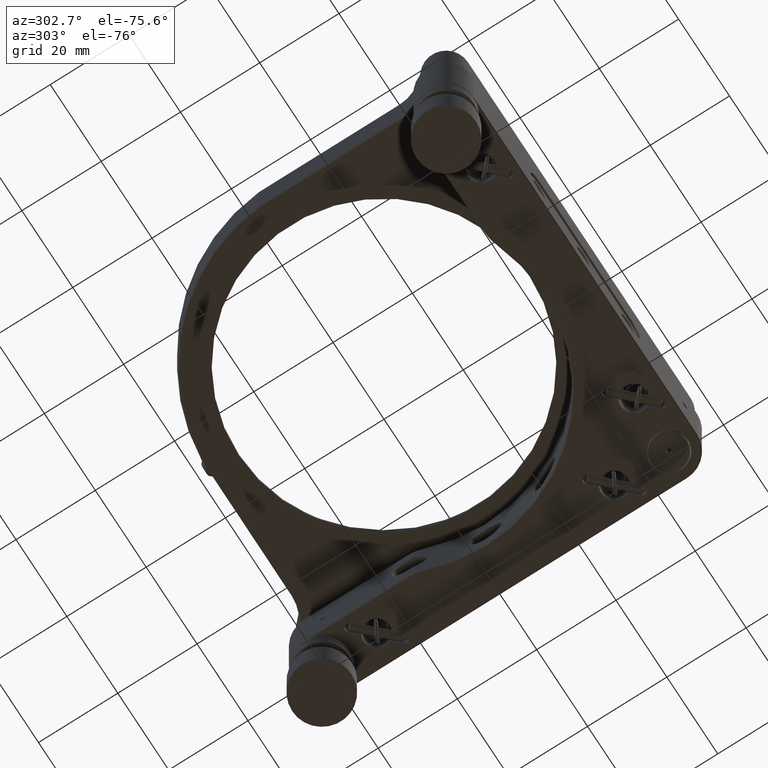
[diagram: clean part render]
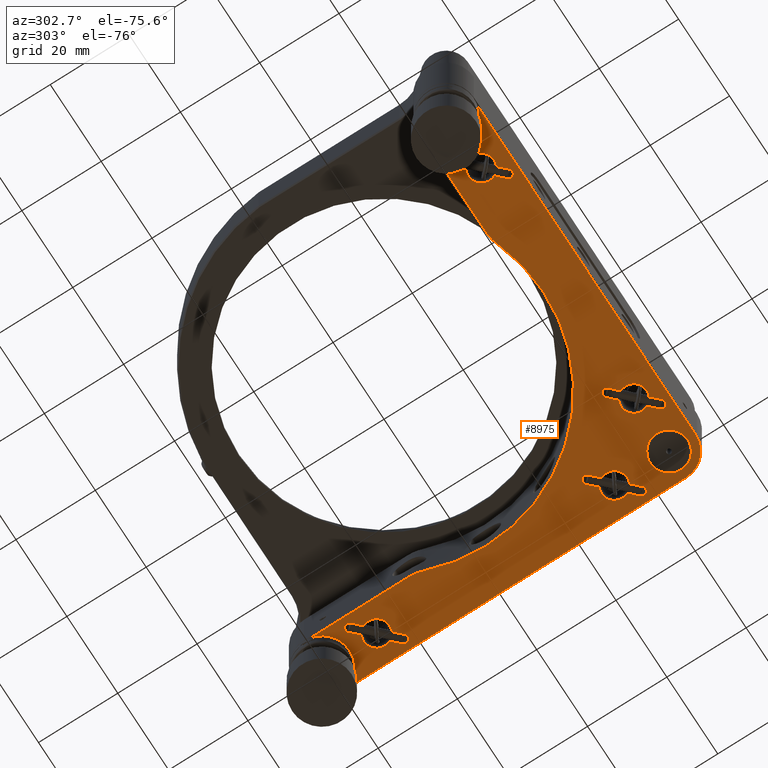
[diagram: same view with one face highlighted and labeled with its STEP entity id]
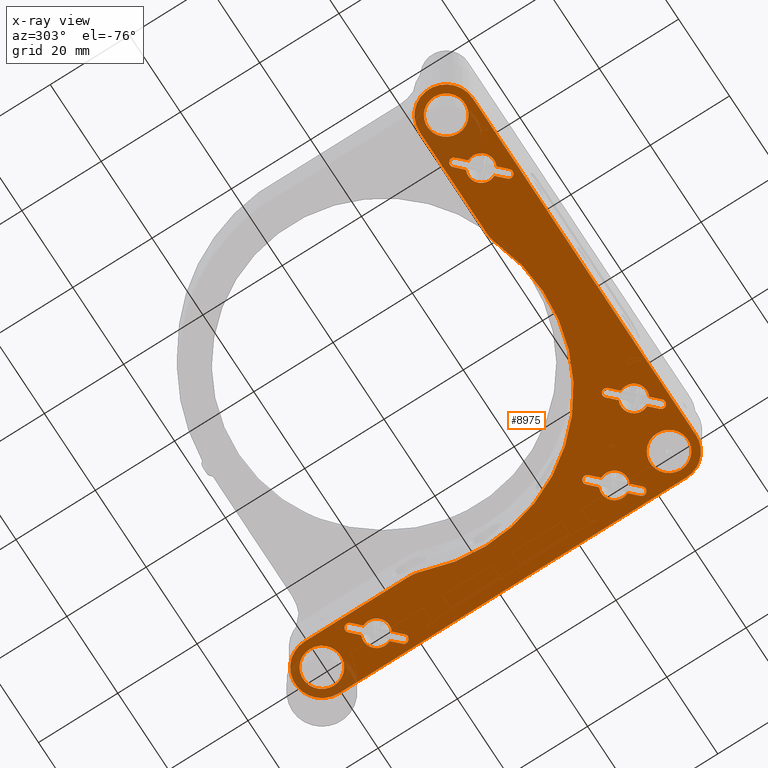
[diagram: x-ray of the same camera — body ghosted, the highlighted face saturated]
A machine part, auxiliary view. The second image highlights one B-rep face of the part: STEP entity #8975.
The next image is the same camera in x-ray: the body ghosted, the highlighted face saturated — about 6% of this face is hidden behind the body in this view.
In plain terms, the highlighted planar face has unit normal (0, 0, 1).
Its self-contained STEP definition (entity closure, byte-faithful):
#103 = VECTOR ( 'NONE', #22662, 1000.000000000000000 ) ;
#122 = ORIENTED_EDGE ( 'NONE', *, *, #12707, .F. ) ;
#208 = EDGE_CURVE ( 'NONE', #19636, #25415, #23484, .T. ) ;
#254 = CARTESIAN_POINT ( 'NONE',  ( 43.79999999999999716, -43.79999999999999716, -8.999999999990633270 ) ) ;
#489 = AXIS2_PLACEMENT_3D ( 'NONE', #13839, #21575, #25692 ) ;
#492 = EDGE_CURVE ( 'NONE', #3307, #20576, #9459, .T. ) ;
#531 = VECTOR ( 'NONE', #7909, 1000.000000000000000 ) ;
#538 = EDGE_CURVE ( 'NONE', #21790, #14194, #12447, .T. ) ;
#665 = CARTESIAN_POINT ( 'NONE',  ( 43.80000000000001137, 43.80000000000000426, -8.999999999990619060 ) ) ;
#737 = CARTESIAN_POINT ( 'NONE',  ( 32.91731843733903418, -45.23239419684726670, -9.000000000000001776 ) ) ;
#796 = CARTESIAN_POINT ( 'NONE',  ( -34.17193000900065414, -39.62806999099937855, -9.000000000000001776 ) ) ;
#855 = CIRCLE ( 'NONE', #7687, 3.250000000000002665 ) ;
#925 = ORIENTED_EDGE ( 'NONE', *, *, #15301, .F. ) ;
#984 = DIRECTION ( 'NONE',  ( 0.000000000000000000, 0.000000000000000000, -1.000000000000000000 ) ) ;
#1006 = EDGE_CURVE ( 'NONE', #26354, #12312, #25248, .T. ) ;
#1167 = ORIENTED_EDGE ( 'NONE', *, *, #23204, .F. ) ;
#1210 = LINE ( 'NONE', #9214, #8923 ) ;
#1278 = VERTEX_POINT ( 'NONE', #16167 ) ;
#1363 = DIRECTION ( 'NONE',  ( 0.000000000000000000, -0.000000000000000000, 1.000000000000000000 ) ) ;
#1409 = ORIENTED_EDGE ( 'NONE', *, *, #21262, .T. ) ;
#1491 = ORIENTED_EDGE ( 'NONE', *, *, #19797, .T. ) ;
#1583 = DIRECTION ( 'NONE',  ( -0.000000000000000000, 1.000000000000000000, 0.000000000000000000 ) ) ;
#1661 = EDGE_CURVE ( 'NONE', #21212, #5004, #23093, .T. ) ;
#1724 = CIRCLE ( 'NONE', #5984, 4.749999999999997335 ) ;
#1785 = VECTOR ( 'NONE', #10261, 1000.000000000000000 ) ;
#1891 = ORIENTED_EDGE ( 'NONE', *, *, #22655, .F. ) ;
#1924 = CARTESIAN_POINT ( 'NONE',  ( 47.22946788875471924, 25.08560787075350618, -9.000000000000001776 ) ) ;
#1996 = VERTEX_POINT ( 'NONE', #8127 ) ;
#2018 = VERTEX_POINT ( 'NONE', #4363 ) ;
#2145 = DIRECTION ( 'NONE',  ( -0.000000000000000000, -0.000000000000000000, -1.000000000000000000 ) ) ;
#2270 = CARTESIAN_POINT ( 'NONE',  ( 45.23239419684726670, -32.91731843733901286, -9.000000000000001776 ) ) ;
#2329 = ORIENTED_EDGE ( 'NONE', *, *, #23694, .F. ) ;
#2625 = AXIS2_PLACEMENT_3D ( 'NONE', #12577, #6310, #12313 ) ;
#2681 = AXIS2_PLACEMENT_3D ( 'NONE', #18123, #18386, #5711 ) ;
#2697 = FACE_BOUND ( 'NONE', #25019, .T. ) ;
#2739 = ORIENTED_EDGE ( 'NONE', *, *, #538, .T. ) ;
#2755 = AXIS2_PLACEMENT_3D ( 'NONE', #22156, #24925, #25056 ) ;
#2828 = DIRECTION ( 'NONE',  ( 1.000000000000000000, 0.000000000000000000, -0.000000000000000000 ) ) ;
#2867 = AXIS2_PLACEMENT_3D ( 'NONE', #15481, #23627, #13490 ) ;
#2958 = VERTEX_POINT ( 'NONE', #18891 ) ;
#2966 = EDGE_CURVE ( 'NONE', #5678, #4570, #16338, .T. ) ;
#3072 = AXIS2_PLACEMENT_3D ( 'NONE', #9637, #1363, #13512 ) ;
#3097 = LINE ( 'NONE', #9643, #18347 ) ;
#3307 = VERTEX_POINT ( 'NONE', #13407 ) ;
#3310 = VERTEX_POINT ( 'NONE', #21559 ) ;
#3367 = DIRECTION ( 'NONE',  ( -0.7071067811865439090, 0.7071067811865512365, 0.000000000000000000 ) ) ;
#3589 = CARTESIAN_POINT ( 'NONE',  ( 50.54999999999999716, 0.000000000000000000, -9.000000000000001776 ) ) ;
#3835 = CARTESIAN_POINT ( 'NONE',  ( 25.82806999099934586, -39.62806999099937855, -9.000000000000001776 ) ) ;
#3891 = CARTESIAN_POINT ( 'NONE',  ( 33.42946788875478603, -48.71439212924647677, -9.000000000000001776 ) ) ;
#3982 = CIRCLE ( 'NONE', #18907, 1.049999999999995381 ) ;
#4112 = CARTESIAN_POINT ( 'NONE',  ( 46.71731843733902423, -31.43239419684727665, -9.000000000000001776 ) ) ;
#4131 = DIRECTION ( 'NONE',  ( 0.000000000000000000, -0.000000000000000000, 1.000000000000000000 ) ) ;
#4179 = VERTEX_POINT ( 'NONE', #20510 ) ;
#4278 = CIRCLE ( 'NONE', #23031, 6.749999999954070518 ) ;
#4294 = CARTESIAN_POINT ( 'NONE',  ( -27.08268156266096582, -45.23239419684726670, -9.000000000000001776 ) ) ;
#4363 = CARTESIAN_POINT ( 'NONE',  ( 38.88560787075349623, 33.42946788875480024, -9.000000000000001776 ) ) ;
#4367 = CARTESIAN_POINT ( 'NONE',  ( 26.57053211124521397, -38.88560787075351044, -9.000000000000001776 ) ) ;
#4411 = DIRECTION ( 'NONE',  ( 0.7071067811865439090, -0.7071067811865512365, 0.000000000000000000 ) ) ;
#4503 = EDGE_CURVE ( 'NONE', #10947, #8401, #23931, .T. ) ;
#4506 = ORIENTED_EDGE ( 'NONE', *, *, #1006, .F. ) ;
#4563 = PLANE ( 'NONE',  #24959 ) ;
#4570 = VERTEX_POINT ( 'NONE', #25654 ) ;
#4801 = DIRECTION ( 'NONE',  ( -0.000000000000000000, -0.000000000000000000, -1.000000000000000000 ) ) ;
#4898 = LINE ( 'NONE', #25186, #103 ) ;
#4899 = VERTEX_POINT ( 'NONE', #13824 ) ;
#4902 = CARTESIAN_POINT ( 'NONE',  ( 46.71731843733901712, -31.43239419684727665, -9.000000000000001776 ) ) ;
#4986 = ORIENTED_EDGE ( 'NONE', *, *, #21203, .F. ) ;
#5004 = VERTEX_POINT ( 'NONE', #24593 ) ;
#5091 = CARTESIAN_POINT ( 'NONE',  ( 0.000000000000000000, -50.55000000000001137, -9.000000000000001776 ) ) ;
#5095 = VECTOR ( 'NONE', #1583, 1000.000000000000000 ) ;
#5160 = AXIS2_PLACEMENT_3D ( 'NONE', #14811, #14296, #12282 ) ;
#5165 = CARTESIAN_POINT ( 'NONE',  ( -30.00000000000001066, -43.79999999999999005, -9.000000000000001776 ) ) ;
#5183 = DIRECTION ( 'NONE',  ( 0.000000000000000000, 0.000000000000000000, 1.000000000000000000 ) ) ;
#5213 = ORIENTED_EDGE ( 'NONE', *, *, #23524, .F. ) ;
#5257 = LINE ( 'NONE', #25531, #19047 ) ;
#5260 = ORIENTED_EDGE ( 'NONE', *, *, #7147, .F. ) ;
#5341 = DIRECTION ( 'NONE',  ( 0.000000000000000000, -0.000000000000000000, 1.000000000000000000 ) ) ;
#5461 = VECTOR ( 'NONE', #25688, 1000.000000000000000 ) ;
#5637 = DIRECTION ( 'NONE',  ( 1.000000000000000000, 0.000000000000000000, -0.000000000000000000 ) ) ;
#5678 = VERTEX_POINT ( 'NONE', #10465 ) ;
#5691 = AXIS2_PLACEMENT_3D ( 'NONE', #3835, #10106, #20260 ) ;
#5711 = DIRECTION ( 'NONE',  ( -1.000000000000000000, 0.000000000000000000, 0.000000000000000000 ) ) ;
#5723 = ORIENTED_EDGE ( 'NONE', *, *, #8292, .F. ) ;
#5772 = CARTESIAN_POINT ( 'NONE',  ( 38.88560787075351044, -26.57053211124519621, -9.000000000000001776 ) ) ;
#5841 = CARTESIAN_POINT ( 'NONE',  ( 48.71439212924646966, 26.57053211124524239, -9.000000000000001776 ) ) ;
#5984 = AXIS2_PLACEMENT_3D ( 'NONE', #11344, #9608, #17751 ) ;
#6039 = CARTESIAN_POINT ( 'NONE',  ( -17.59999999999999432, -37.04999999999999005, -9.000000000000001776 ) ) ;
#6113 = AXIS2_PLACEMENT_3D ( 'NONE', #23415, #984, #9125 ) ;
#6127 = LINE ( 'NONE', #18153, #1785 ) ;
#6137 = CIRCLE ( 'NONE', #21064, 4.750000000000004441 ) ;
#6206 = CARTESIAN_POINT ( 'NONE',  ( -32.91731843733904839, -42.36760580315271341, -9.000000000000001776 ) ) ;
#6254 = CARTESIAN_POINT ( 'NONE',  ( 40.88268156266097719, -28.56760580315268072, -9.000000000000001776 ) ) ;
#6310 = DIRECTION ( 'NONE',  ( 0.000000000000000000, 0.000000000000000000, 1.000000000000000000 ) ) ;
#6373 = EDGE_CURVE ( 'NONE', #7541, #9252, #13808, .T. ) ;
#6457 = ORIENTED_EDGE ( 'NONE', *, *, #9176, .F. ) ;
#6551 = VERTEX_POINT ( 'NONE', #11923 ) ;
#6604 = VERTEX_POINT ( 'NONE', #6039 ) ;
#6610 = CIRCLE ( 'NONE', #2755, 9.750000000000014211 ) ;
#6617 = CARTESIAN_POINT ( 'NONE',  ( 25.08560787075347775, -40.37053211124526086, -9.000000000000001776 ) ) ;
#6618 = EDGE_LOOP ( 'NONE', ( #14168 ) ) ;
#6862 = EDGE_CURVE ( 'NONE', #19259, #3310, #24966, .T. ) ;
#6895 = VECTOR ( 'NONE', #13341, 1000.000000000000000 ) ;
#6921 = VERTEX_POINT ( 'NONE', #24511 ) ;
#7131 = CARTESIAN_POINT ( 'NONE',  ( 43.79999999999999716, 43.80000000000001137, -9.000000000000001776 ) ) ;
#7147 = EDGE_CURVE ( 'NONE', #15502, #3307, #24160, .T. ) ;
#7232 = DIRECTION ( 'NONE',  ( 0.7071067811865439090, -0.7071067811865512365, 0.000000000000000000 ) ) ;
#7322 = DIRECTION ( 'NONE',  ( 0.7071067811865500152, -0.7071067811865451302, 0.000000000000000000 ) ) ;
#7397 = ORIENTED_EDGE ( 'NONE', *, *, #208, .F. ) ;
#7426 = VECTOR ( 'NONE', #4411, 999.9999999999998863 ) ;
#7541 = VERTEX_POINT ( 'NONE', #12556 ) ;
#7568 = DIRECTION ( 'NONE',  ( 0.000000000000000000, 0.000000000000000000, 1.000000000000000000 ) ) ;
#7640 = ORIENTED_EDGE ( 'NONE', *, *, #20737, .T. ) ;
#7687 = AXIS2_PLACEMENT_3D ( 'NONE', #10799, #5183, #11051 ) ;
#7909 = DIRECTION ( 'NONE',  ( 0.7071067811865512365, -0.7071067811865439090, 0.000000000000000000 ) ) ;
#7979 = ORIENTED_EDGE ( 'NONE', *, *, #25016, .T. ) ;
#8000 = CARTESIAN_POINT ( 'NONE',  ( 39.62806999099937144, 34.17193000900067545, -9.000000000000001776 ) ) ;
#8116 = CIRCLE ( 'NONE', #25158, 1.049999999999995381 ) ;
#8127 = CARTESIAN_POINT ( 'NONE',  ( 39.04999999999999716, 43.80000000000001137, -9.000000000000001776 ) ) ;
#8292 = EDGE_CURVE ( 'NONE', #9356, #14194, #12869, .T. ) ;
#8380 = CARTESIAN_POINT ( 'NONE',  ( -30.00000000000001066, -43.79999999999999005, -9.000000000000001776 ) ) ;
#8401 = VERTEX_POINT ( 'NONE', #19278 ) ;
#8425 = CARTESIAN_POINT ( 'NONE',  ( 40.88268156266095588, 31.43239419684733349, -9.000000000000001776 ) ) ;
#8470 = VERTEX_POINT ( 'NONE', #15272 ) ;
#8478 = AXIS2_PLACEMENT_3D ( 'NONE', #8000, #16142, #22296 ) ;
#8767 = EDGE_CURVE ( 'NONE', #2958, #4899, #24095, .T. ) ;
#8887 = AXIS2_PLACEMENT_3D ( 'NONE', #23643, #8963, #23512 ) ;
#8923 = VECTOR ( 'NONE', #18985, 1000.000000000000114 ) ;
#8963 = DIRECTION ( 'NONE',  ( 0.000000000000000000, 0.000000000000000000, -1.000000000000000000 ) ) ;
#8975 = ADVANCED_FACE ( 'NONE', ( #16973, #25116, #21261, #12578, #23124, #2697, #15119, #18998 ), #4563, .F. ) ;
#9125 = DIRECTION ( 'NONE',  ( -1.000000000000000000, 0.000000000000000000, 0.000000000000000000 ) ) ;
#9176 = EDGE_CURVE ( 'NONE', #12312, #11691, #15377, .T. ) ;
#9214 = CARTESIAN_POINT ( 'NONE',  ( 40.88268156266095588, 31.43239419684733349, -9.000000000000001776 ) ) ;
#9243 = CARTESIAN_POINT ( 'NONE',  ( 40.37053211124524665, 34.91439212924654356, -9.000000000000001776 ) ) ;
#9252 = VERTEX_POINT ( 'NONE', #15773 ) ;
#9257 = CIRCLE ( 'NONE', #24198, 6.749999999954070518 ) ;
#9328 = CARTESIAN_POINT ( 'NONE',  ( 26.57053211124521397, -38.88560787075351044, -9.000000000000001776 ) ) ;
#9356 = VERTEX_POINT ( 'NONE', #3891 ) ;
#9385 = DIRECTION ( 'NONE',  ( -1.000000000000000000, 0.000000000000000000, 0.000000000000000000 ) ) ;
#9456 = VERTEX_POINT ( 'NONE', #5772 ) ;
#9459 = CIRCLE ( 'NONE', #489, 1.049999999999995381 ) ;
#9515 = VERTEX_POINT ( 'NONE', #2270 ) ;
#9589 = LINE ( 'NONE', #3589, #5095 ) ;
#9593 = DIRECTION ( 'NONE',  ( -0.000000000000000000, -0.000000000000000000, 1.000000000000000000 ) ) ;
#9608 = DIRECTION ( 'NONE',  ( 0.000000000000000000, 0.000000000000000000, 1.000000000000000000 ) ) ;
#9637 = CARTESIAN_POINT ( 'NONE',  ( -43.79999999999999005, -43.79999999999999716, -8.999999999924776617 ) ) ;
#9643 = CARTESIAN_POINT ( 'NONE',  ( 47.22946788875473345, -34.91439212924650093, -9.000000000000001776 ) ) ;
#9667 = VERTEX_POINT ( 'NONE', #22951 ) ;
#9749 = CARTESIAN_POINT ( 'NONE',  ( 48.54999999999999716, -43.79999999999999716, -9.000000000000001776 ) ) ;
#9930 = VERTEX_POINT ( 'NONE', #8425 ) ;
#10072 = VECTOR ( 'NONE', #18625, 1000.000000000000000 ) ;
#10106 = DIRECTION ( 'NONE',  ( -0.000000000000000000, -0.000000000000000000, -1.000000000000000000 ) ) ;
#10219 = ORIENTED_EDGE ( 'NONE', *, *, #1661, .F. ) ;
#10261 = DIRECTION ( 'NONE',  ( 0.7071067811865512365, -0.7071067811865439090, 0.000000000000000000 ) ) ;
#10327 = EDGE_CURVE ( 'NONE', #8470, #14101, #14096, .T. ) ;
#10457 = CIRCLE ( 'NONE', #15952, 3.250000000000006217 ) ;
#10465 = CARTESIAN_POINT ( 'NONE',  ( 37.67399999999999949, 14.16799999999998860, -9.000000000000001776 ) ) ;
#10557 = CIRCLE ( 'NONE', #12682, 4.750000000000004441 ) ;
#10580 = CARTESIAN_POINT ( 'NONE',  ( 0.000000000000000000, 0.000000000000000000, -9.000000000000001776 ) ) ;
#10738 = ORIENTED_EDGE ( 'NONE', *, *, #6862, .F. ) ;
#10742 = DIRECTION ( 'NONE',  ( -0.7071067811865524577, 0.7071067811865426878, 0.000000000000000000 ) ) ;
#10750 = EDGE_CURVE ( 'NONE', #1278, #17315, #5257, .T. ) ;
#10761 = EDGE_CURVE ( 'NONE', #8401, #1278, #24582, .T. ) ;
#10778 = CIRCLE ( 'NONE', #5691, 1.049999999999995381 ) ;
#10799 = CARTESIAN_POINT ( 'NONE',  ( 29.99999999999999289, -43.79999999999999716, -9.000000000000001776 ) ) ;
#10874 = ORIENTED_EDGE ( 'NONE', *, *, #20570, .F. ) ;
#10928 = CARTESIAN_POINT ( 'NONE',  ( 43.80000000000000426, -50.54999999997704663, -8.999999999990633270 ) ) ;
#10947 = VERTEX_POINT ( 'NONE', #4294 ) ;
#11051 = DIRECTION ( 'NONE',  ( -1.000000000000000000, 0.000000000000000000, 0.000000000000000000 ) ) ;
#11315 = ORIENTED_EDGE ( 'NONE', *, *, #23287, .T. ) ;
#11344 = CARTESIAN_POINT ( 'NONE',  ( 43.79999999999999716, -43.79999999999999716, -9.000000000000001776 ) ) ;
#11411 = DIRECTION ( 'NONE',  ( 0.000000000000000000, 0.000000000000000000, -1.000000000000000000 ) ) ;
#11435 = EDGE_CURVE ( 'NONE', #11691, #9667, #9257, .T. ) ;
#11543 = ORIENTED_EDGE ( 'NONE', *, *, #8767, .F. ) ;
#11624 = ORIENTED_EDGE ( 'NONE', *, *, #492, .F. ) ;
#11690 = ORIENTED_EDGE ( 'NONE', *, *, #13884, .F. ) ;
#11691 = VERTEX_POINT ( 'NONE', #10928 ) ;
#11862 = VERTEX_POINT ( 'NONE', #13739 ) ;
#11901 = ORIENTED_EDGE ( 'NONE', *, *, #26416, .T. ) ;
#11923 = CARTESIAN_POINT ( 'NONE',  ( 37.04999999999999716, 17.59999999999999076, -9.000000000000000000 ) ) ;
#11944 = EDGE_LOOP ( 'NONE', ( #7640 ) ) ;
#11970 = EDGE_CURVE ( 'NONE', #20202, #20202, #10557, .T. ) ;
#11993 = DIRECTION ( 'NONE',  ( -1.000000000000000000, 0.000000000000000000, 0.000000000000000000 ) ) ;
#12014 = CARTESIAN_POINT ( 'NONE',  ( -43.79999999999999005, -50.55000000003762040, -8.999999999962389197 ) ) ;
#12168 = CARTESIAN_POINT ( 'NONE',  ( 34.17193000900064703, -47.97193000900060156, -9.000000000000001776 ) ) ;
#12282 = DIRECTION ( 'NONE',  ( -1.000000000000000000, 3.202566417187948859E-15, 0.000000000000000000 ) ) ;
#12312 = VERTEX_POINT ( 'NONE', #12014 ) ;
#12313 = DIRECTION ( 'NONE',  ( -1.000000000000000000, 0.000000000000000000, 0.000000000000000000 ) ) ;
#12384 = EDGE_CURVE ( 'NONE', #6551, #5678, #22496, .T. ) ;
#12447 = CIRCLE ( 'NONE', #2625, 3.250000000000002665 ) ;
#12556 = CARTESIAN_POINT ( 'NONE',  ( 40.37053211124524665, 34.91439212924654356, -9.000000000000001776 ) ) ;
#12577 = CARTESIAN_POINT ( 'NONE',  ( 29.99999999999999289, -43.79999999999999716, -9.000000000000001776 ) ) ;
#12578 = FACE_BOUND ( 'NONE', #6618, .T. ) ;
#12620 = CARTESIAN_POINT ( 'NONE',  ( 37.04999999999530047, 43.80000000000001847, -8.999999999995310418 ) ) ;
#12632 = VERTEX_POINT ( 'NONE', #24412 ) ;
#12682 = AXIS2_PLACEMENT_3D ( 'NONE', #19343, #9593, #21483 ) ;
#12707 = EDGE_CURVE ( 'NONE', #21790, #23412, #21701, .T. ) ;
#12834 = EDGE_LOOP ( 'NONE', ( #7979 ) ) ;
#12869 = LINE ( 'NONE', #15142, #23258 ) ;
#13244 = CIRCLE ( 'NONE', #14961, 3.250000000000006217 ) ;
#13341 = DIRECTION ( 'NONE',  ( 0.7071067811865439090, -0.7071067811865512365, 0.000000000000000000 ) ) ;
#13347 = DIRECTION ( 'NONE',  ( 1.000000000000000000, 0.000000000000000000, 0.000000000000000000 ) ) ;
#13386 = VECTOR ( 'NONE', #7232, 1000.000000000000000 ) ;
#13407 = CARTESIAN_POINT ( 'NONE',  ( 48.71439212924648388, -33.42946788875477182, -9.000000000000001776 ) ) ;
#13485 = CARTESIAN_POINT ( 'NONE',  ( 47.22946788875473345, -34.91439212924650093, -9.000000000000001776 ) ) ;
#13490 = DIRECTION ( 'NONE',  ( 1.000000000000000000, 0.000000000000000000, 0.000000000000000000 ) ) ;
#13512 = DIRECTION ( 'NONE',  ( 1.000000000000000000, 0.000000000000000000, 0.000000000000000000 ) ) ;
#13529 = CARTESIAN_POINT ( 'NONE',  ( -48.54999999999999716, -43.80000000000000426, -9.000000000000001776 ) ) ;
#13689 = ORIENTED_EDGE ( 'NONE', *, *, #16055, .F. ) ;
#13723 = CARTESIAN_POINT ( 'NONE',  ( -43.79999999999999005, -37.04999999999128590, -8.999999999980238030 ) ) ;
#13739 = CARTESIAN_POINT ( 'NONE',  ( 50.54999999997703242, 43.80000000000000426, -8.999999999990647481 ) ) ;
#13775 = EDGE_CURVE ( 'NONE', #9930, #4899, #25547, .T. ) ;
#13784 = ORIENTED_EDGE ( 'NONE', *, *, #13775, .T. ) ;
#13808 = LINE ( 'NONE', #9243, #13386 ) ;
#13824 = CARTESIAN_POINT ( 'NONE',  ( 45.23239419684725959, 27.08268156266098714, -9.000000000000001776 ) ) ;
#13839 = CARTESIAN_POINT ( 'NONE',  ( 47.97193000900060866, -34.17193000900063993, -9.000000000000001776 ) ) ;
#13884 = EDGE_CURVE ( 'NONE', #9667, #11862, #9589, .T. ) ;
#14044 = DIRECTION ( 'NONE',  ( -1.000000000000000000, 0.000000000000000000, 0.000000000000000000 ) ) ;
#14088 = EDGE_CURVE ( 'NONE', #25415, #2958, #20849, .T. ) ;
#14096 = LINE ( 'NONE', #6206, #10072 ) ;
#14101 = VERTEX_POINT ( 'NONE', #21521 ) ;
#14168 = ORIENTED_EDGE ( 'NONE', *, *, #11970, .T. ) ;
#14184 = ORIENTED_EDGE ( 'NONE', *, *, #6373, .F. ) ;
#14194 = VERTEX_POINT ( 'NONE', #19647 ) ;
#14207 = CIRCLE ( 'NONE', #2681, 3.250000000000002665 ) ;
#14235 = CARTESIAN_POINT ( 'NONE',  ( 43.79999999999998295, 30.00000000000002842, -9.000000000000001776 ) ) ;
#14296 = DIRECTION ( 'NONE',  ( -0.000000000000000000, -0.000000000000000000, 1.000000000000000000 ) ) ;
#14353 = VERTEX_POINT ( 'NONE', #12620 ) ;
#14394 = DIRECTION ( 'NONE',  ( -0.7071067811865432429, 0.7071067811865517916, 0.000000000000000000 ) ) ;
#14628 = DIRECTION ( 'NONE',  ( 0.7071067811865524577, -0.7071067811865426878, 0.000000000000000000 ) ) ;
#14692 = CARTESIAN_POINT ( 'NONE',  ( 40.88268156266097719, -28.56760580315268072, -9.000000000000000000 ) ) ;
#14728 = CARTESIAN_POINT ( 'NONE',  ( 27.08268156266095517, -42.36760580315272762, -9.000000000000001776 ) ) ;
#14749 = EDGE_LOOP ( 'NONE', ( #6457, #4506, #20175, #25789, #16074, #17318, #25341, #10874, #11690, #19132 ) ) ;
#14811 = CARTESIAN_POINT ( 'NONE',  ( 43.80000000000000426, -29.99999999999997158, -9.000000000000001776 ) ) ;
#14961 = AXIS2_PLACEMENT_3D ( 'NONE', #8380, #24661, #18672 ) ;
#15015 = ORIENTED_EDGE ( 'NONE', *, *, #20088, .F. ) ;
#15119 = FACE_BOUND ( 'NONE', #12834, .T. ) ;
#15142 = CARTESIAN_POINT ( 'NONE',  ( 33.42946788875478603, -48.71439212924647677, -9.000000000000001776 ) ) ;
#15272 = CARTESIAN_POINT ( 'NONE',  ( -32.91731843733904839, -42.36760580315271341, -9.000000000000001776 ) ) ;
#15287 = DIRECTION ( 'NONE',  ( -0.000000000000000000, -0.000000000000000000, 1.000000000000000000 ) ) ;
#15301 = EDGE_CURVE ( 'NONE', #2018, #7541, #15738, .T. ) ;
#15341 = AXIS2_PLACEMENT_3D ( 'NONE', #12168, #2145, #14044 ) ;
#15377 = LINE ( 'NONE', #5091, #24537 ) ;
#15481 = CARTESIAN_POINT ( 'NONE',  ( 46.80000000000001847, 17.59999999999999076, -9.000000000000000000 ) ) ;
#15502 = VERTEX_POINT ( 'NONE', #4902 ) ;
#15738 = CIRCLE ( 'NONE', #8478, 1.049999999999995381 ) ;
#15773 = CARTESIAN_POINT ( 'NONE',  ( 42.36760580315270630, 32.91731843733906970, -9.000000000000001776 ) ) ;
#15952 = AXIS2_PLACEMENT_3D ( 'NONE', #5165, #7568, #23589 ) ;
#16055 = EDGE_CURVE ( 'NONE', #9930, #2018, #1210, .T. ) ;
#16074 = ORIENTED_EDGE ( 'NONE', *, *, #2966, .F. ) ;
#16142 = DIRECTION ( 'NONE',  ( 0.000000000000000000, 0.000000000000000000, -1.000000000000000000 ) ) ;
#16167 = CARTESIAN_POINT ( 'NONE',  ( -26.57053211124522107, -48.71439212924647677, -9.000000000000001776 ) ) ;
#16196 = DIRECTION ( 'NONE',  ( -0.7071067811865432429, 0.7071067811865517916, 0.000000000000000000 ) ) ;
#16338 = CIRCLE ( 'NONE', #6113, 40.24999999999998579 ) ;
#16339 = CARTESIAN_POINT ( 'NONE',  ( 0.000000000000000000, -37.04999999999999005, -9.000000000000001776 ) ) ;
#16806 = VECTOR ( 'NONE', #18019, 1000.000000000000000 ) ;
#16973 = FACE_BOUND ( 'NONE', #25874, .T. ) ;
#17143 = CARTESIAN_POINT ( 'NONE',  ( 39.62806999099938565, -25.82806999099932810, -9.000000000000001776 ) ) ;
#17284 = ORIENTED_EDGE ( 'NONE', *, *, #4503, .F. ) ;
#17315 = VERTEX_POINT ( 'NONE', #19142 ) ;
#17318 = ORIENTED_EDGE ( 'NONE', *, *, #12384, .F. ) ;
#17396 = ORIENTED_EDGE ( 'NONE', *, *, #17753, .T. ) ;
#17751 = DIRECTION ( 'NONE',  ( 1.000000000000000000, 0.000000000000000000, 0.000000000000000000 ) ) ;
#17753 = EDGE_CURVE ( 'NONE', #6921, #5004, #855, .T. ) ;
#17940 = DIRECTION ( 'NONE',  ( -0.7071067811865512365, 0.7071067811865439090, 0.000000000000000000 ) ) ;
#18019 = DIRECTION ( 'NONE',  ( 0.7071067811865426878, -0.7071067811865524577, 0.000000000000000000 ) ) ;
#18123 = CARTESIAN_POINT ( 'NONE',  ( 43.80000000000000426, -29.99999999999997158, -9.000000000000001776 ) ) ;
#18153 = CARTESIAN_POINT ( 'NONE',  ( -33.42946788875478603, -38.88560787075350333, -9.000000000000001776 ) ) ;
#18170 = DIRECTION ( 'NONE',  ( 1.000000000000000000, 0.000000000000000000, 0.000000000000000000 ) ) ;
#18238 = DIRECTION ( 'NONE',  ( -1.000000000000000000, 0.000000000000000000, 0.000000000000000000 ) ) ;
#18347 = VECTOR ( 'NONE', #3367, 999.9999999999998863 ) ;
#18386 = DIRECTION ( 'NONE',  ( -0.000000000000000000, -0.000000000000000000, 1.000000000000000000 ) ) ;
#18625 = DIRECTION ( 'NONE',  ( -0.7071067811865512365, 0.7071067811865439090, 0.000000000000000000 ) ) ;
#18646 = LINE ( 'NONE', #737, #19320 ) ;
#18672 = DIRECTION ( 'NONE',  ( -1.000000000000000000, 0.000000000000000000, 0.000000000000000000 ) ) ;
#18703 = DIRECTION ( 'NONE',  ( -1.000000000000000000, 0.000000000000000000, 0.000000000000000000 ) ) ;
#18891 = CARTESIAN_POINT ( 'NONE',  ( 47.22946788875471924, 25.08560787075350618, -9.000000000000001776 ) ) ;
#18907 = AXIS2_PLACEMENT_3D ( 'NONE', #17143, #11411, #23562 ) ;
#18952 = EDGE_CURVE ( 'NONE', #15502, #3310, #21797, .T. ) ;
#18985 = DIRECTION ( 'NONE',  ( -0.7071067811865451302, 0.7071067811865500152, 0.000000000000000000 ) ) ;
#18998 = FACE_OUTER_BOUND ( 'NONE', #14749, .T. ) ;
#19047 = VECTOR ( 'NONE', #17940, 1000.000000000000000 ) ;
#19132 = ORIENTED_EDGE ( 'NONE', *, *, #11435, .F. ) ;
#19142 = CARTESIAN_POINT ( 'NONE',  ( -28.56760580315269848, -46.71731843733901712, -9.000000000000001776 ) ) ;
#19259 = VERTEX_POINT ( 'NONE', #19745 ) ;
#19278 = CARTESIAN_POINT ( 'NONE',  ( -25.08560787075348486, -47.22946788875472635, -9.000000000000001776 ) ) ;
#19320 = VECTOR ( 'NONE', #14628, 1000.000000000000000 ) ;
#19343 = CARTESIAN_POINT ( 'NONE',  ( -43.79999999999999005, -43.80000000000000426, -9.000000000000001776 ) ) ;
#19500 = VERTEX_POINT ( 'NONE', #9749 ) ;
#19518 = ORIENTED_EDGE ( 'NONE', *, *, #18952, .T. ) ;
#19544 = ORIENTED_EDGE ( 'NONE', *, *, #14088, .F. ) ;
#19615 = CIRCLE ( 'NONE', #21757, 3.250000000000009770 ) ;
#19636 = VERTEX_POINT ( 'NONE', #25848 ) ;
#19647 = CARTESIAN_POINT ( 'NONE',  ( 31.43239419684729796, -46.71731843733901712, -9.000000000000001776 ) ) ;
#19745 = CARTESIAN_POINT ( 'NONE',  ( 40.37053211124526086, -25.08560787075346354, -9.000000000000001776 ) ) ;
#19751 = CARTESIAN_POINT ( 'NONE',  ( 46.71731843733901002, 28.56760580315271980, -9.000000000000001776 ) ) ;
#19797 = EDGE_CURVE ( 'NONE', #19636, #9252, #19615, .T. ) ;
#20088 = EDGE_CURVE ( 'NONE', #20576, #9515, #3097, .T. ) ;
#20175 = ORIENTED_EDGE ( 'NONE', *, *, #24220, .F. ) ;
#20202 = VERTEX_POINT ( 'NONE', #13529 ) ;
#20260 = DIRECTION ( 'NONE',  ( -1.000000000000000000, 0.000000000000000000, 0.000000000000000000 ) ) ;
#20274 = EDGE_CURVE ( 'NONE', #12632, #9356, #22178, .T. ) ;
#20375 = DIRECTION ( 'NONE',  ( -0.000000000000000000, -0.000000000000000000, 1.000000000000000000 ) ) ;
#20452 = EDGE_CURVE ( 'NONE', #14101, #4179, #8116, .T. ) ;
#20510 = CARTESIAN_POINT ( 'NONE',  ( -33.42946788875478603, -38.88560787075350333, -9.000000000000001776 ) ) ;
#20516 = EDGE_LOOP ( 'NONE', ( #5260, #19518, #10738, #2329, #4986, #11315, #15015, #11624 ) ) ;
#20556 = VERTEX_POINT ( 'NONE', #14692 ) ;
#20570 = EDGE_CURVE ( 'NONE', #11862, #14353, #4278, .T. ) ;
#20576 = VERTEX_POINT ( 'NONE', #13485 ) ;
#20697 = ORIENTED_EDGE ( 'NONE', *, *, #20452, .F. ) ;
#20737 = EDGE_CURVE ( 'NONE', #19500, #19500, #1724, .T. ) ;
#20849 = CIRCLE ( 'NONE', #8887, 1.049999999999995381 ) ;
#21011 = LINE ( 'NONE', #16339, #23586 ) ;
#21064 = AXIS2_PLACEMENT_3D ( 'NONE', #7131, #15287, #23429 ) ;
#21203 = EDGE_CURVE ( 'NONE', #20556, #9456, #25055, .T. ) ;
#21212 = VERTEX_POINT ( 'NONE', #4367 ) ;
#21261 = FACE_BOUND ( 'NONE', #11944, .T. ) ;
#21262 = EDGE_CURVE ( 'NONE', #10947, #22046, #13244, .T. ) ;
#21483 = DIRECTION ( 'NONE',  ( -1.000000000000000000, 0.000000000000000000, 0.000000000000000000 ) ) ;
#21521 = CARTESIAN_POINT ( 'NONE',  ( -34.91439212924652225, -40.37053211124525376, -9.000000000000001776 ) ) ;
#21559 = CARTESIAN_POINT ( 'NONE',  ( 42.36760580315272051, -27.08268156266094095, -9.000000000000001776 ) ) ;
#21575 = DIRECTION ( 'NONE',  ( 0.000000000000000000, 0.000000000000000000, -1.000000000000000000 ) ) ;
#21701 = LINE ( 'NONE', #23696, #5461 ) ;
#21757 = AXIS2_PLACEMENT_3D ( 'NONE', #14235, #20375, #18238 ) ;
#21790 = VERTEX_POINT ( 'NONE', #14728 ) ;
#21797 = CIRCLE ( 'NONE', #5160, 3.250000000000002665 ) ;
#21868 = ORIENTED_EDGE ( 'NONE', *, *, #10761, .F. ) ;
#21881 = VECTOR ( 'NONE', #7322, 1000.000000000000114 ) ;
#22046 = VERTEX_POINT ( 'NONE', #22326 ) ;
#22140 = CARTESIAN_POINT ( 'NONE',  ( 43.79999999999998295, 30.00000000000002842, -9.000000000000001776 ) ) ;
#22156 = CARTESIAN_POINT ( 'NONE',  ( -17.59999999999999076, -46.80000000000001847, -9.000000000000001776 ) ) ;
#22178 = CIRCLE ( 'NONE', #15341, 1.049999999999995381 ) ;
#22296 = DIRECTION ( 'NONE',  ( -1.000000000000000000, 0.000000000000000000, 0.000000000000000000 ) ) ;
#22326 = CARTESIAN_POINT ( 'NONE',  ( -31.43239419684731217, -40.88268156266096298, -9.000000000000001776 ) ) ;
#22496 = CIRCLE ( 'NONE', #2867, 9.750000000000015987 ) ;
#22655 = EDGE_CURVE ( 'NONE', #4179, #22046, #6127, .T. ) ;
#22662 = DIRECTION ( 'NONE',  ( 0.000000000000000000, -1.000000000000000000, -0.000000000000000000 ) ) ;
#22826 = VECTOR ( 'NONE', #16196, 1000.000000000000000 ) ;
#22859 = EDGE_CURVE ( 'NONE', #14353, #6551, #4898, .T. ) ;
#22867 = DIRECTION ( 'NONE',  ( -1.000000000000000000, -0.000000000000000000, 0.000000000000000000 ) ) ;
#22951 = CARTESIAN_POINT ( 'NONE',  ( 50.54999999997703242, -43.79999999999999716, -8.999999999990633270 ) ) ;
#22962 = CARTESIAN_POINT ( 'NONE',  ( 40.37053211124526797, -25.08560787075346710, -9.000000000000001776 ) ) ;
#23031 = AXIS2_PLACEMENT_3D ( 'NONE', #665, #5341, #13347 ) ;
#23057 = VECTOR ( 'NONE', #14394, 1000.000000000000000 ) ;
#23093 = LINE ( 'NONE', #9328, #21881 ) ;
#23124 = FACE_BOUND ( 'NONE', #25505, .T. ) ;
#23204 = EDGE_CURVE ( 'NONE', #23412, #21212, #10778, .T. ) ;
#23257 = DIRECTION ( 'NONE',  ( 0.000000000000000000, 0.000000000000000000, 1.000000000000000000 ) ) ;
#23258 = VECTOR ( 'NONE', #10742, 1000.000000000000000 ) ;
#23287 = EDGE_CURVE ( 'NONE', #20556, #9515, #14207, .T. ) ;
#23412 = VERTEX_POINT ( 'NONE', #6617 ) ;
#23415 = CARTESIAN_POINT ( 'NONE',  ( 0.000000000000000000, 0.000000000000000000, -9.000000000000001776 ) ) ;
#23429 = DIRECTION ( 'NONE',  ( -1.000000000000000000, 0.000000000000000000, 0.000000000000000000 ) ) ;
#23484 = LINE ( 'NONE', #19751, #6895 ) ;
#23512 = DIRECTION ( 'NONE',  ( -1.000000000000000000, 0.000000000000000000, 0.000000000000000000 ) ) ;
#23524 = EDGE_CURVE ( 'NONE', #6921, #12632, #18646, .T. ) ;
#23562 = DIRECTION ( 'NONE',  ( -1.000000000000000000, 0.000000000000000000, 0.000000000000000000 ) ) ;
#23586 = VECTOR ( 'NONE', #22867, 1000.000000000000000 ) ;
#23589 = DIRECTION ( 'NONE',  ( -1.000000000000000000, 0.000000000000000000, 0.000000000000000000 ) ) ;
#23627 = DIRECTION ( 'NONE',  ( 0.000000000000000000, 0.000000000000000000, 1.000000000000000000 ) ) ;
#23643 = CARTESIAN_POINT ( 'NONE',  ( 47.97193000900059445, 25.82806999099937428, -9.000000000000001776 ) ) ;
#23660 = CARTESIAN_POINT ( 'NONE',  ( -27.08268156266096227, -45.23239419684726670, -9.000000000000001776 ) ) ;
#23694 = EDGE_CURVE ( 'NONE', #9456, #19259, #3982, .T. ) ;
#23696 = CARTESIAN_POINT ( 'NONE',  ( 27.08268156266095517, -42.36760580315272762, -9.000000000000001776 ) ) ;
#23726 = AXIS2_PLACEMENT_3D ( 'NONE', #23950, #24090, #9385 ) ;
#23931 = LINE ( 'NONE', #23660, #531 ) ;
#23950 = CARTESIAN_POINT ( 'NONE',  ( -25.82806999099935297, -47.97193000900060156, -9.000000000000001776 ) ) ;
#24090 = DIRECTION ( 'NONE',  ( -0.000000000000000000, -0.000000000000000000, -1.000000000000000000 ) ) ;
#24095 = LINE ( 'NONE', #1924, #22826 ) ;
#24160 = LINE ( 'NONE', #4112, #16806 ) ;
#24198 = AXIS2_PLACEMENT_3D ( 'NONE', #254, #4131, #18170 ) ;
#24200 = ORIENTED_EDGE ( 'NONE', *, *, #10327, .F. ) ;
#24220 = EDGE_CURVE ( 'NONE', #6604, #26354, #21011, .T. ) ;
#24412 = CARTESIAN_POINT ( 'NONE',  ( 34.91439212924652225, -47.22946788875472635, -9.000000000000001776 ) ) ;
#24511 = CARTESIAN_POINT ( 'NONE',  ( 32.91731843733902707, -45.23239419684726670, -9.000000000000001776 ) ) ;
#24537 = VECTOR ( 'NONE', #5637, 1000.000000000000000 ) ;
#24582 = CIRCLE ( 'NONE', #23726, 1.049999999999995381 ) ;
#24593 = CARTESIAN_POINT ( 'NONE',  ( 28.56760580315269138, -40.88268156266097719, -9.000000000000001776 ) ) ;
#24616 = ORIENTED_EDGE ( 'NONE', *, *, #10750, .F. ) ;
#24661 = DIRECTION ( 'NONE',  ( 0.000000000000000000, 0.000000000000000000, 1.000000000000000000 ) ) ;
#24925 = DIRECTION ( 'NONE',  ( 0.000000000000000000, -0.000000000000000000, 1.000000000000000000 ) ) ;
#24959 = AXIS2_PLACEMENT_3D ( 'NONE', #10580, #23257, #2828 ) ;
#24966 = LINE ( 'NONE', #22962, #7426 ) ;
#25016 = EDGE_CURVE ( 'NONE', #1996, #1996, #6137, .T. ) ;
#25019 = EDGE_LOOP ( 'NONE', ( #1891, #20697, #24200, #11901, #24616, #21868, #17284, #1409 ) ) ;
#25055 = LINE ( 'NONE', #6254, #23057 ) ;
#25056 = DIRECTION ( 'NONE',  ( 1.000000000000000000, 0.000000000000000000, 0.000000000000000000 ) ) ;
#25116 = FACE_BOUND ( 'NONE', #20516, .T. ) ;
#25158 = AXIS2_PLACEMENT_3D ( 'NONE', #796, #4801, #18703 ) ;
#25186 = CARTESIAN_POINT ( 'NONE',  ( 37.04999999999999005, 0.000000000000000000, -9.000000000000001776 ) ) ;
#25248 = CIRCLE ( 'NONE', #3072, 6.750000000067757355 ) ;
#25341 = ORIENTED_EDGE ( 'NONE', *, *, #22859, .F. ) ;
#25415 = VERTEX_POINT ( 'NONE', #5841 ) ;
#25505 = EDGE_LOOP ( 'NONE', ( #10219, #1167, #122, #2739, #5723, #26422, #5213, #17396 ) ) ;
#25531 = CARTESIAN_POINT ( 'NONE',  ( -26.57053211124522107, -48.71439212924647677, -9.000000000000001776 ) ) ;
#25547 = CIRCLE ( 'NONE', #25988, 3.250000000000009770 ) ;
#25654 = CARTESIAN_POINT ( 'NONE',  ( -14.16799999999999038, -37.67399999999999949, -9.000000000000001776 ) ) ;
#25688 = DIRECTION ( 'NONE',  ( -0.7071067811865487940, 0.7071067811865463515, 0.000000000000000000 ) ) ;
#25692 = DIRECTION ( 'NONE',  ( -1.000000000000000000, 0.000000000000000000, 0.000000000000000000 ) ) ;
#25732 = DIRECTION ( 'NONE',  ( -0.000000000000000000, -0.000000000000000000, 1.000000000000000000 ) ) ;
#25789 = ORIENTED_EDGE ( 'NONE', *, *, #25989, .F. ) ;
#25848 = CARTESIAN_POINT ( 'NONE',  ( 46.71731843733901002, 28.56760580315272335, -9.000000000000001776 ) ) ;
#25874 = EDGE_LOOP ( 'NONE', ( #7397, #1491, #14184, #925, #13689, #13784, #11543, #19544 ) ) ;
#25988 = AXIS2_PLACEMENT_3D ( 'NONE', #22140, #25732, #11993 ) ;
#25989 = EDGE_CURVE ( 'NONE', #4570, #6604, #6610, .T. ) ;
#26354 = VERTEX_POINT ( 'NONE', #13723 ) ;
#26416 = EDGE_CURVE ( 'NONE', #8470, #17315, #10457, .T. ) ;
#26422 = ORIENTED_EDGE ( 'NONE', *, *, #20274, .F. ) ;